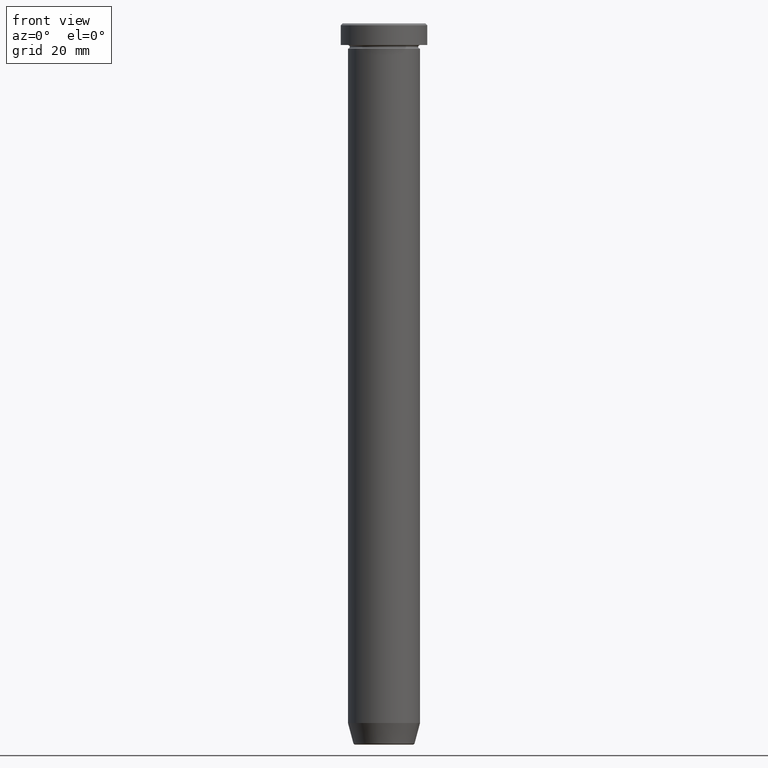
[diagram: clean part render]
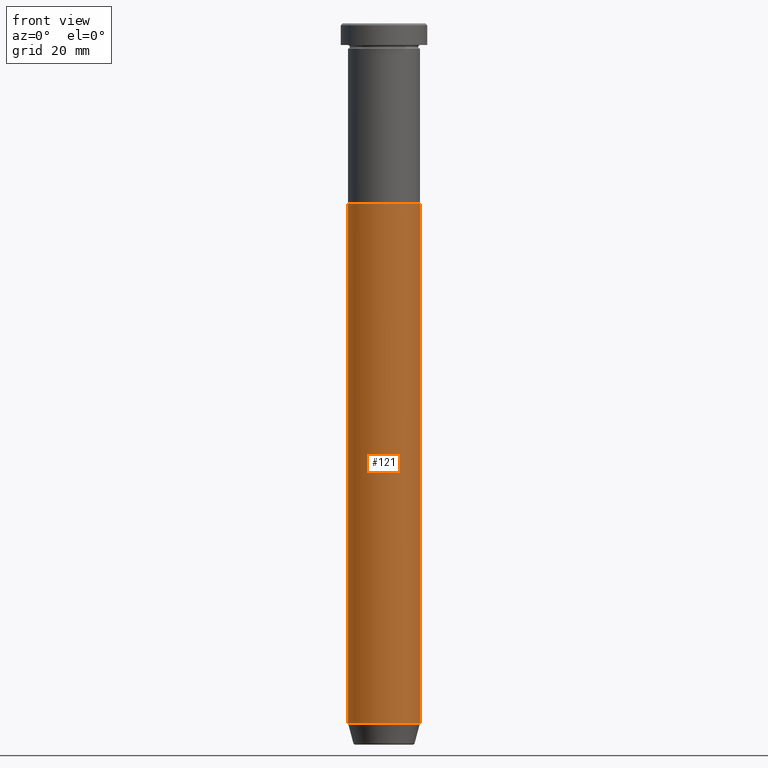
[diagram: same view with one face highlighted and labeled with its STEP entity id]
A machine part, front view. The second image highlights one B-rep face of the part: STEP entity #121.
In plain terms, the highlighted cylindrical surface (edge-blend (fillet) strip) has radius 10 mm, axis along (-0, -0, 1).
Its self-contained STEP definition (entity closure, byte-faithful):
#35 = VERTEX_POINT ( 'NONE', #554 ) ;
#47 = CARTESIAN_POINT ( 'NONE',  ( 0.000000000000000000, 0.000000000000000000, -50.00000000000000000 ) ) ;
#74 = EDGE_CURVE ( 'NONE', #82, #402, #158, .T. ) ;
#75 = VERTEX_POINT ( 'NONE', #413 ) ;
#82 = VERTEX_POINT ( 'NONE', #318 ) ;
#94 = DIRECTION ( 'NONE',  ( 1.000000000000000000, 0.000000000000000000, 0.000000000000000000 ) ) ;
#99 = VECTOR ( 'NONE', #470, 1000.000000000000000 ) ;
#104 = CARTESIAN_POINT ( 'NONE',  ( -9.999999999999998224, 1.224646799147353059E-15, 0.000000000000000000 ) ) ;
#121 = ADVANCED_FACE ( 'NONE', ( #244 ), #210, .T. ) ;
#127 = CIRCLE ( 'NONE', #558, 9.999999999999998224 ) ;
#158 = CIRCLE ( 'NONE', #507, 10.00000000000000000 ) ;
#160 = CARTESIAN_POINT ( 'NONE',  ( 10.00000000000000000, 0.000000000000000000, -50.00000000000000000 ) ) ;
#165 = DIRECTION ( 'NONE',  ( -0.000000000000000000, -0.000000000000000000, 1.000000000000000000 ) ) ;
#167 = DIRECTION ( 'NONE',  ( -0.000000000000000000, -0.000000000000000000, 1.000000000000000000 ) ) ;
#200 = DIRECTION ( 'NONE',  ( 1.000000000000000000, 0.000000000000000000, 0.000000000000000000 ) ) ;
#210 = CYLINDRICAL_SURFACE ( 'NONE', #472, 9.999999999999998224 ) ;
#212 = EDGE_LOOP ( 'NONE', ( #298, #529, #587, #289 ) ) ;
#223 = EDGE_CURVE ( 'NONE', #35, #82, #371, .T. ) ;
#244 = FACE_OUTER_BOUND ( 'NONE', #212, .T. ) ;
#276 = EDGE_CURVE ( 'NONE', #35, #75, #127, .T. ) ;
#289 = ORIENTED_EDGE ( 'NONE', *, *, #74, .F. ) ;
#298 = ORIENTED_EDGE ( 'NONE', *, *, #223, .F. ) ;
#318 = CARTESIAN_POINT ( 'NONE',  ( -10.00000000000000000, 1.224646799147353256E-15, -50.00000000000000000 ) ) ;
#340 = DIRECTION ( 'NONE',  ( 1.000000000000000000, 0.000000000000000000, 0.000000000000000000 ) ) ;
#371 = LINE ( 'NONE', #104, #99 ) ;
#397 = CARTESIAN_POINT ( 'NONE',  ( 0.000000000000000000, 0.000000000000000000, 0.000000000000000000 ) ) ;
#400 = LINE ( 'NONE', #588, #454 ) ;
#402 = VERTEX_POINT ( 'NONE', #160 ) ;
#413 = CARTESIAN_POINT ( 'NONE',  ( 9.999999999999998224, 0.000000000000000000, -194.0000000000000000 ) ) ;
#454 = VECTOR ( 'NONE', #167, 1000.000000000000000 ) ;
#470 = DIRECTION ( 'NONE',  ( -0.000000000000000000, -0.000000000000000000, 1.000000000000000000 ) ) ;
#472 = AXIS2_PLACEMENT_3D ( 'NONE', #397, #165, #340 ) ;
#485 = CARTESIAN_POINT ( 'NONE',  ( 0.000000000000000000, 0.000000000000000000, -194.0000000000000000 ) ) ;
#492 = DIRECTION ( 'NONE',  ( -0.000000000000000000, -0.000000000000000000, 1.000000000000000000 ) ) ;
#507 = AXIS2_PLACEMENT_3D ( 'NONE', #47, #509, #94 ) ;
#509 = DIRECTION ( 'NONE',  ( -0.000000000000000000, -0.000000000000000000, 1.000000000000000000 ) ) ;
#529 = ORIENTED_EDGE ( 'NONE', *, *, #276, .T. ) ;
#554 = CARTESIAN_POINT ( 'NONE',  ( -9.999999999999998224, 1.224646799147353059E-15, -194.0000000000000000 ) ) ;
#558 = AXIS2_PLACEMENT_3D ( 'NONE', #485, #492, #200 ) ;
#577 = EDGE_CURVE ( 'NONE', #75, #402, #400, .T. ) ;
#587 = ORIENTED_EDGE ( 'NONE', *, *, #577, .T. ) ;
#588 = CARTESIAN_POINT ( 'NONE',  ( 9.999999999999998224, 0.000000000000000000, 0.000000000000000000 ) ) ;